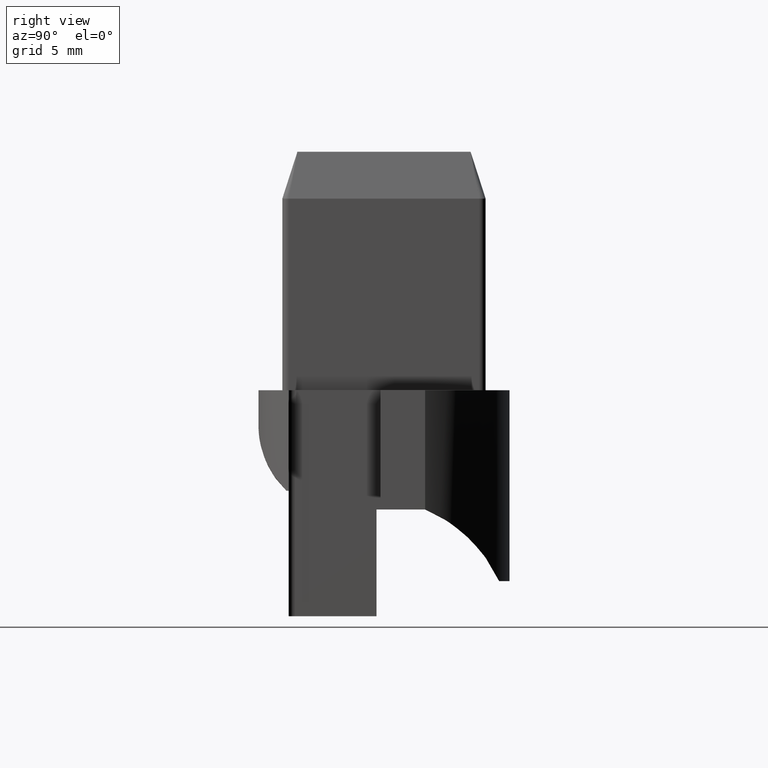
[diagram: clean part render]
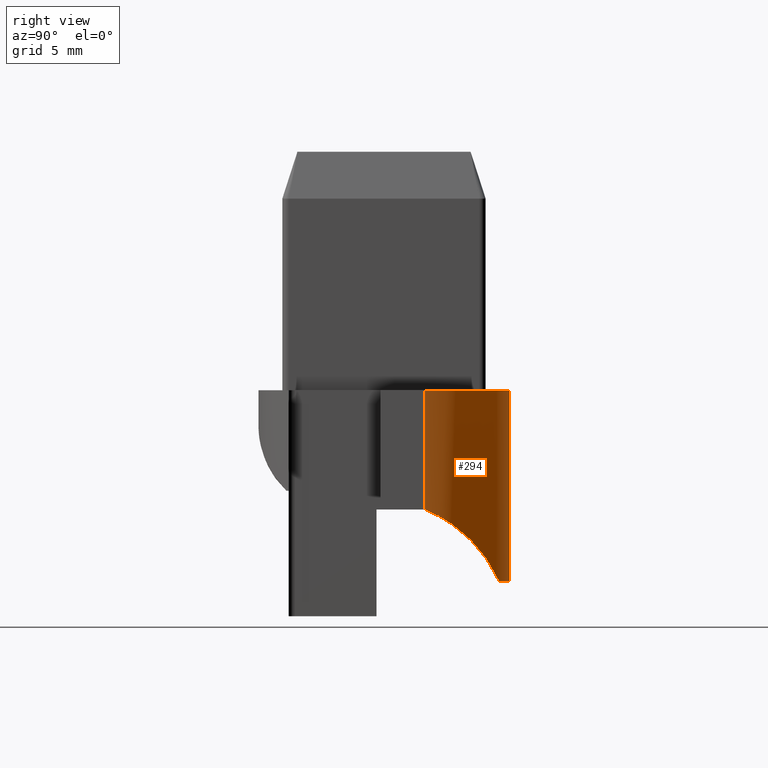
[diagram: same view with one face highlighted and labeled with its STEP entity id]
A machine part, right view. The second image highlights one B-rep face of the part: STEP entity #294.
In plain terms, the highlighted cylindrical surface (partial cylindrical patch) has radius 11 mm, axis along (0, 0, 1).
Its self-contained STEP definition (entity closure, byte-faithful):
#224=CARTESIAN_POINT('',(18.500258850071077,7.271698707538318,8.500258763228544));
#225=VERTEX_POINT('',#224);
#232=CARTESIAN_POINT('',(18.500258850071077,7.271698952718500,17.999843056640088));
#233=VERTEX_POINT('',#232);
#234=CARTESIAN_POINT('',(18.500258850071077,7.271698707538318,8.500258763228544));
#235=DIRECTION('',(0.0,0.000000025809570,1.000000000000000));
#236=VECTOR('',#235,9.499584293411541);
#237=LINE('',#234,#236);
#238=EDGE_CURVE('',#225,#233,#237,.T.);
#249=CARTESIAN_POINT('',(8.309379536816778,3.130927860883624,-12.000156836488372));
#250=DIRECTION('',(1.654361E-024,0.000000025809570,1.000000000000000));
#251=DIRECTION('',(0.926443573932212,0.376433665231618,-9.715591E-009));
#252=AXIS2_PLACEMENT_3D('',#249,#250,#251);
#253=CYLINDRICAL_SURFACE('',#252,10.999999999999964);
#254=ORIENTED_EDGE('',*,*,#238,.F.);
#255=CARTESIAN_POINT('',(12.797723603031955,13.173575679780150,2.797724875525545));
#256=VERTEX_POINT('',#255);
#257=CARTESIAN_POINT('',(12.797723603032864,13.173575679780022,2.797724875525545));
#258=CARTESIAN_POINT('',(13.432982524300314,12.889660460907685,3.432983532587627));
#259=CARTESIAN_POINT('',(14.595232196774305,12.235349486826351,4.595232889842349));
#260=CARTESIAN_POINT('',(16.202391954619088,10.885817578659996,6.202392397946709));
#261=CARTESIAN_POINT('',(17.339356450730520,9.493465746468296,7.339356638765593));
#262=CARTESIAN_POINT('',(18.079754596816201,8.221299422323952,8.079754891082416));
#263=CARTESIAN_POINT('',(18.377579760415756,7.573625335235201,8.377579673207379));
#264=CARTESIAN_POINT('',(18.500258850071077,7.271698957303986,8.500258763228544));
#265=B_SPLINE_CURVE_WITH_KNOTS('',3,(#257,#258,#259,#260,#261,#262,#263,#264),.UNSPECIFIED.,.F.,.U.,(4,1,1,1,1,4),(0.0,2.829433602150791,5.286896068187379,7.907486391638630,9.176107869721710,10.221246136843481),.UNSPECIFIED.);
#266=EDGE_CURVE('',#256,#225,#265,.T.);
#267=ORIENTED_EDGE('',*,*,#266,.F.);
#268=CARTESIAN_POINT('',(10.001503071232946,13.999999865735635,2.797724854195734));
#269=VERTEX_POINT('',#268);
#270=CARTESIAN_POINT('',(8.309379536816778,3.130928242810592,2.797725134721760));
#271=DIRECTION('',(-1.654361E-024,-0.000000025809570,-1.000000000000000));
#272=DIRECTION('',(0.926443573932212,0.376433665231618,-9.715591E-009));
#273=AXIS2_PLACEMENT_3D('',#270,#271,#272);
#274=CIRCLE('',#273,10.999999999999964);
#275=EDGE_CURVE('',#269,#256,#274,.T.);
#276=ORIENTED_EDGE('',*,*,#275,.F.);
#277=CARTESIAN_POINT('',(10.001503071232946,14.000000258095765,17.999842882985718));
#278=VERTEX_POINT('',#277);
#279=CARTESIAN_POINT('',(10.001503071232946,13.999999865735637,2.797724854195788));
#280=DIRECTION('',(0.0,0.000000025809570,1.000000000000000));
#281=VECTOR('',#280,15.202118028789926);
#282=LINE('',#279,#281);
#283=EDGE_CURVE('',#269,#278,#282,.T.);
#284=ORIENTED_EDGE('',*,*,#283,.T.);
#285=CARTESIAN_POINT('',(8.309379536816778,3.130928635170719,17.999843163511635));
#286=DIRECTION('',(4.963084E-024,0.000000025809570,1.000000000000000));
#287=DIRECTION('',(0.926443573932212,0.376433665231618,-9.715591E-009));
#288=AXIS2_PLACEMENT_3D('',#285,#286,#287);
#289=CIRCLE('',#288,10.999999999999964);
#290=EDGE_CURVE('',#233,#278,#289,.T.);
#291=ORIENTED_EDGE('',*,*,#290,.F.);
#292=EDGE_LOOP('',(#254,#267,#276,#284,#291));
#293=FACE_OUTER_BOUND('',#292,.T.);
#294=ADVANCED_FACE('',(#293),#253,.T.);